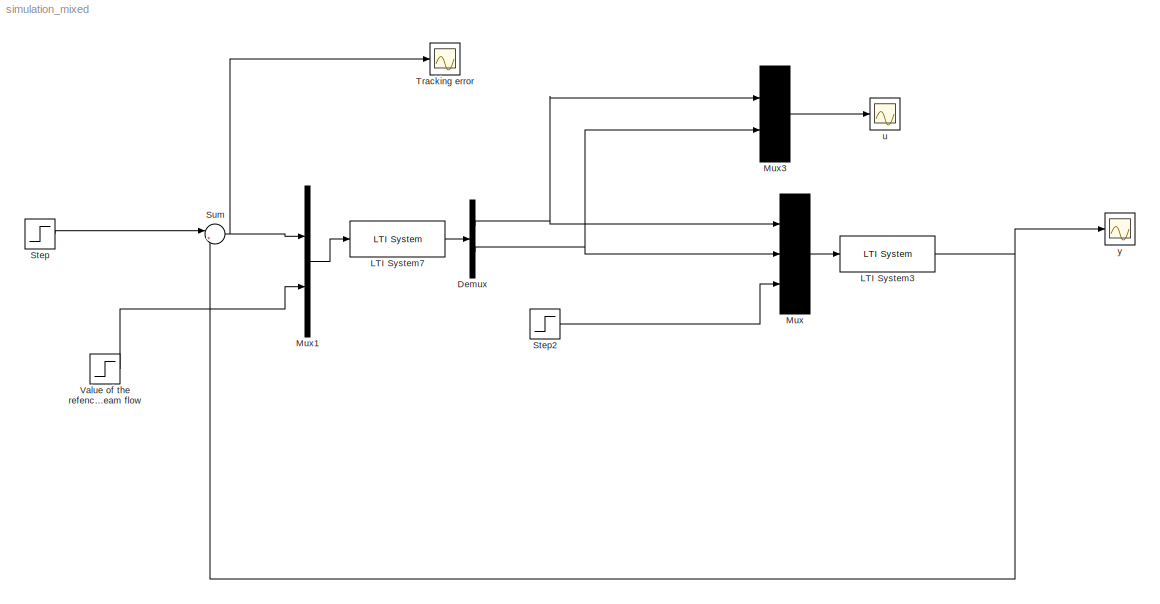
MODEL simulation_mixed
KIND model
BLOCK [Demux] Demux
  DisplayOption = bar
  Outputs = 2
  Ports = [1, 2]
BLOCK [Reference] LTI System3  REF=cstblocks/LTI System
  FunctionWithSeparateData = off
  IC = 0
  Ports = [1, 1]
  RTWMemSecDataConstants = Inherit from model
  RTWMemSecDataInternal = Inherit from model
  RTWMemSecDataParameters = Inherit from model
  RTWMemSecFuncExecute = Inherit from model
  RTWMemSecFuncInitTerm = Inherit from model
  ShowPortLabels = FromPortIcon
  SourceBlock = cstblocks/LTI System
  SourceType = LTI Block
  SystemSampleTime = -1
  sys = sys_synt_ss
BLOCK [Reference] LTI System7  REF=cstblocks/LTI System
  FunctionWithSeparateData = off
  IC = 0
  Ports = [1, 1]
  RTWMemSecDataConstants = Inherit from model
  RTWMemSecDataInternal = Inherit from model
  RTWMemSecDataParameters = Inherit from model
  RTWMemSecFuncExecute = Inherit from model
  RTWMemSecFuncInitTerm = Inherit from model
  ShowPortLabels = FromPortIcon
  SourceBlock = cstblocks/LTI System
  SourceType = LTI Block
  SystemSampleTime = -1
  sys = K_simul
BLOCK [Mux] Mux
  Inputs = 3
  Ports = [3, 1]
BLOCK [Mux] Mux1
  Inputs = 2
  Ports = [2, 1]
BLOCK [Mux] Mux3
  Inputs = 2
  Ports = [2, 1]
BLOCK [Step] Step
  SampleTime = 0
BLOCK [Step] Step2
  SampleTime = 0
  Time = 100
BLOCK [Sum] Sum
  CollapseMode = All dimensions
  IconShape = round
  Inputs = |+-
  Ports = [2, 1]
BLOCK [Scope] Tracking  error
  DataFormat = Array
  Floating = off
  NumInputPorts = 1
  Ports = [1]
  SampleTime = 0
  SaveName = e
  SaveToWorkspace = on
  TimeRange = 400.8620689655172
  YMax = 1.192521367521368
  YMin = -0.1985042735042735
BLOCK [Step] Value  of the refence for the downstream  flow 
  SampleTime = 0
  Time = 300
BLOCK [Scope] u
  DataFormat = Array
  Floating = off
  LimitDataPoints = off
  NumInputPorts = 1
  Ports = [1]
  SampleTime = 0.1
  SaveName = y1
  SaveToWorkspace = on
  TimeRange = 400
  YMax = 4
  YMin = -10
BLOCK [Scope] y
  DataFormat = Array
  Floating = off
  LimitDataPoints = off
  NumInputPorts = 1
  Ports = [1]
  SampleTime = 0.1
  SaveName = y
  SaveToWorkspace = on
  TimeRange = 400
  YMax = 1.2
  YMin = -0.2
NET Demux:1 -> Mux3:1, Mux:1
NET Demux:2 -> Mux3:2, Mux:2
NET LTI System3:1 -> Sum:2, y:1
LINE LTI System7:1 -> Demux:1
LINE Mux1:1 -> LTI System7:1
LINE Mux3:1 -> u:1
LINE Mux:1 -> LTI System3:1
LINE Step2:1 -> Mux:3
LINE Step:1 -> Sum:1
NET Sum:1 -> Mux1:1, Tracking  error:1
LINE Value  of the refence for the downstream  flow :1 -> Mux1:2
note: NET lines group one-source signal fan-out (src -> all destinations, sorted); 1:1 wires keep LINE
